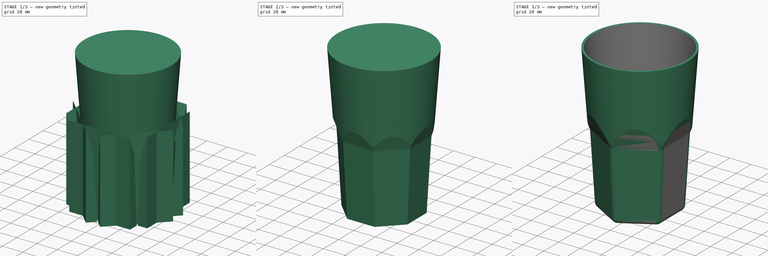
[diagram: build sequence overview — one tinted view per stage of 3, left to right]
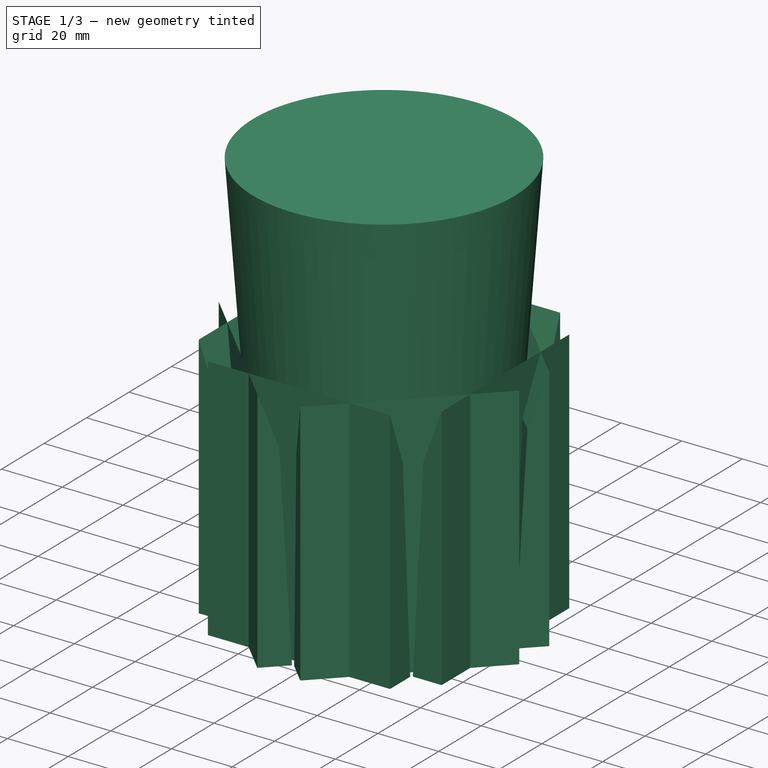
[diagram: stage 1 of 3 — iso view after this stage's code; geometry added in this stage tinted green]
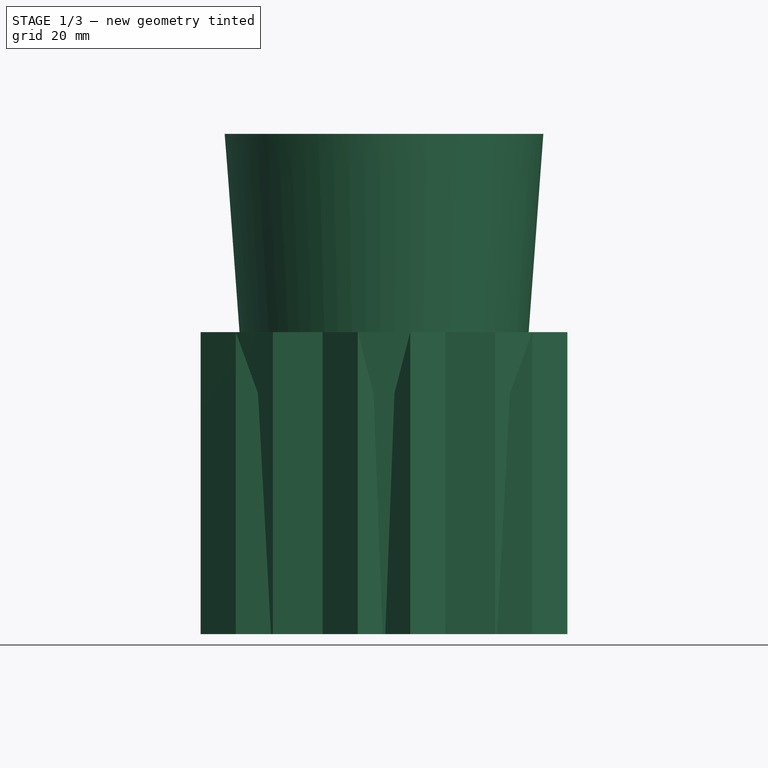
[diagram: stage 1 of 3 — front view after this stage's code; geometry added in this stage tinted green]
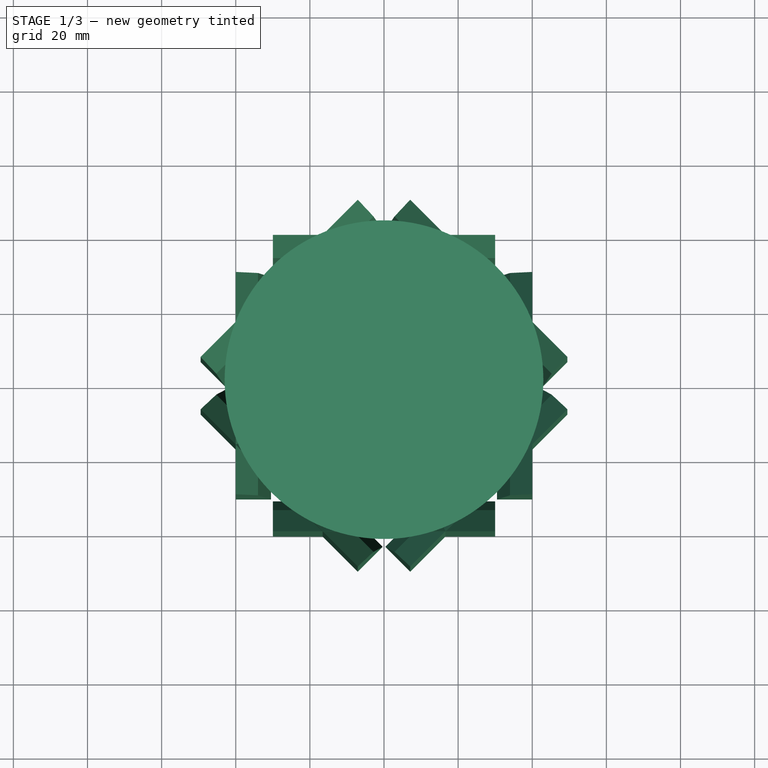
[diagram: stage 1 of 3 — top view after this stage's code; geometry added in this stage tinted green]
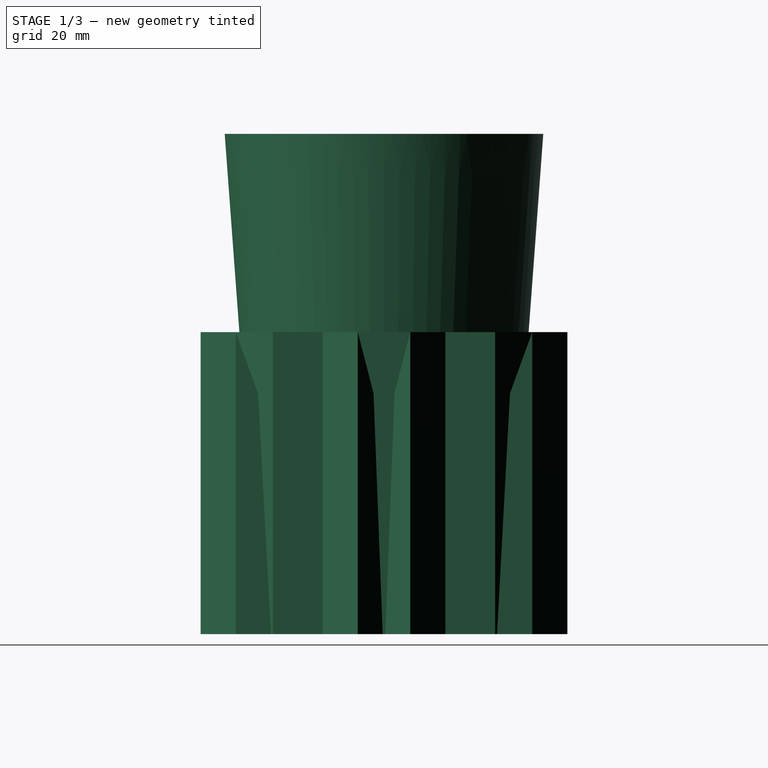
[diagram: stage 1 of 3 — right view after this stage's code; geometry added in this stage tinted green]
FCSTD DOCUMENT  (FreeCAD 0.15R4671 (Git))
Label: cup
License: CreativeCommons Attribution
LicenseURL: http://creativecommons.org/licenses/by/4.0/
objects: Part::Fillet×4, Part::Cone×1, Sketcher::SketchObject×1, Part::Extrusion×1, Part::FeaturePython×1, Part::Cut×1, Part::Thickness×1
note: 10 computed .brp shape members not serialized (recipe doc carries the construction recipe); baked Part::Feature solids carry a one-line shape summary decoded from their .brp

FEATURE [Part::Cone] Cone
  Angle = 360
  Height = 135
  Radius1 = 33
  Radius2 = 43
FEATURE [Sketcher::SketchObject] Sketch
  Placement = pos=(0,0,0) rot=(1,0,0;1.5708rad)
  sketch-geometry (4):
    g0: LineSegment StartX=30.5 StartY=0 StartZ=0 EndX=34 EndY=65 EndZ=0
    g1: LineSegment StartX=34 StartY=65 StartZ=0 EndX=40 EndY=81.4849 EndZ=0
    g2: LineSegment StartX=40 StartY=81.4849 StartZ=0 EndX=40 EndY=0 EndZ=0
    g3: LineSegment StartX=30.5 StartY=0 StartZ=0 EndX=40 EndY=0 EndZ=0
  constraints (12):
    c: PointOnObject(g0,g-1)
    c: Coincident(g2,g1)
    c: Vertical(g2)
    c: Angle(g1,g2) = 0.349066
    c: Horizontal(g3)
    c: Coincident(g2,g3)
    c: Coincident(g0,g3)
    c: Coincident(g0,g1)
    c: DistanceX(g-1,g2) = 40
    c: DistanceX(g-1,g0) = 34
    c: Distance(g-1,g0) = 30.5
    c: DistanceY(g0,g2) = -65
FEATURE [Part::Extrusion] Extrude
  Base = -> Sketch
  Dir = (0,60,0)
  Placement = pos=(0,-30,0) rot=(0,0,1;0rad)
  Solid = true
FEATURE [Part::FeaturePython] Array  # Draft array (typed FeaturePython)
  Angle = 360
  ArrayType = 1
  Axis = (0,0,1)
  Base = -> Extrude
  Center = (0,0,0)
  Fuse = true
  IntervalAxis = (0,0,0)
  IntervalX = (1,0,0)
  IntervalY = (0,1,0)
  IntervalZ = (0,0,0)
  NumberPolar = 8
  NumberX = 1
  NumberY = 1
  NumberZ = 1
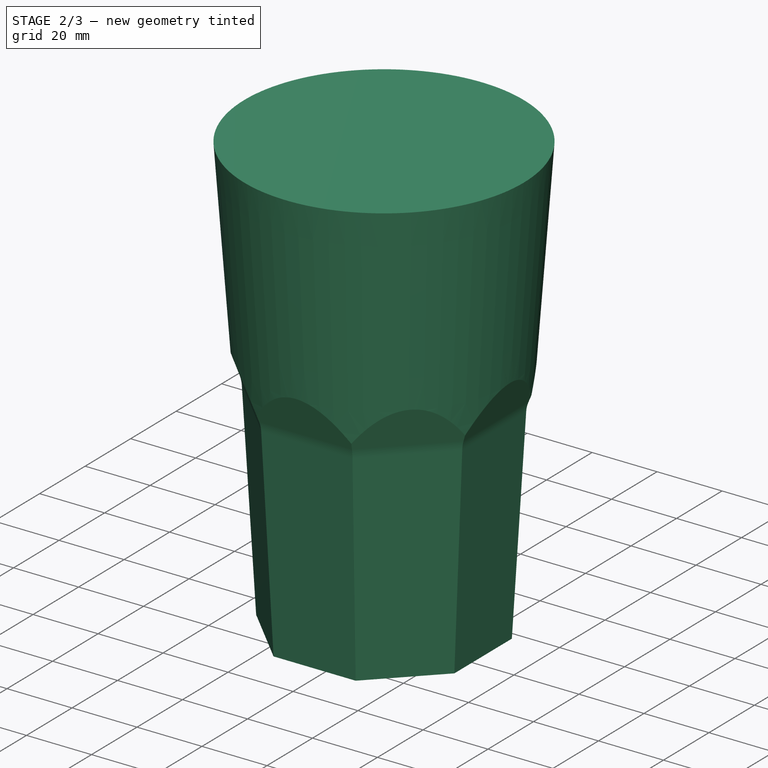
[diagram: stage 2 of 3 — iso view after this stage's code; geometry added in this stage tinted green]
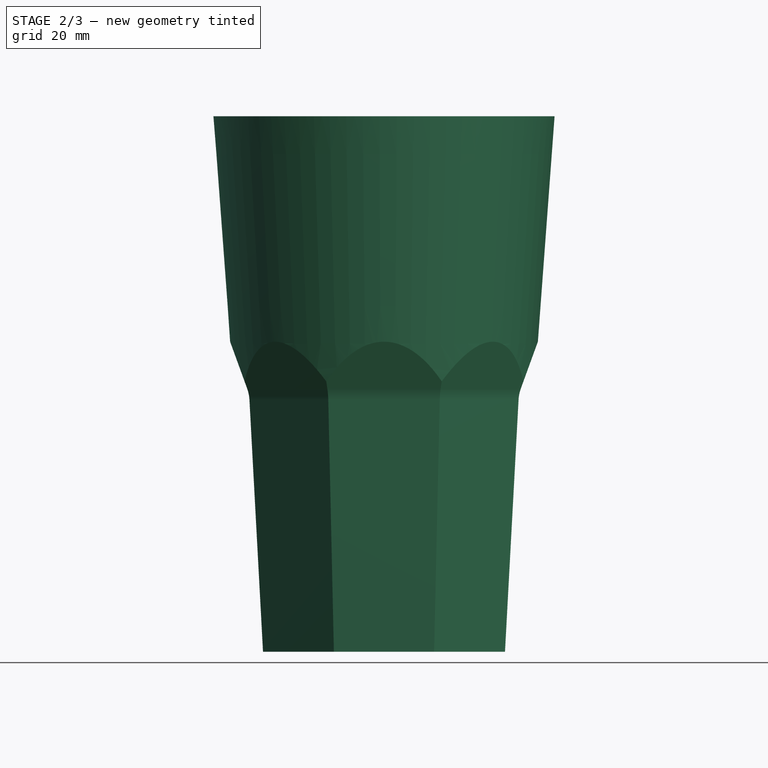
[diagram: stage 2 of 3 — front view after this stage's code; geometry added in this stage tinted green]
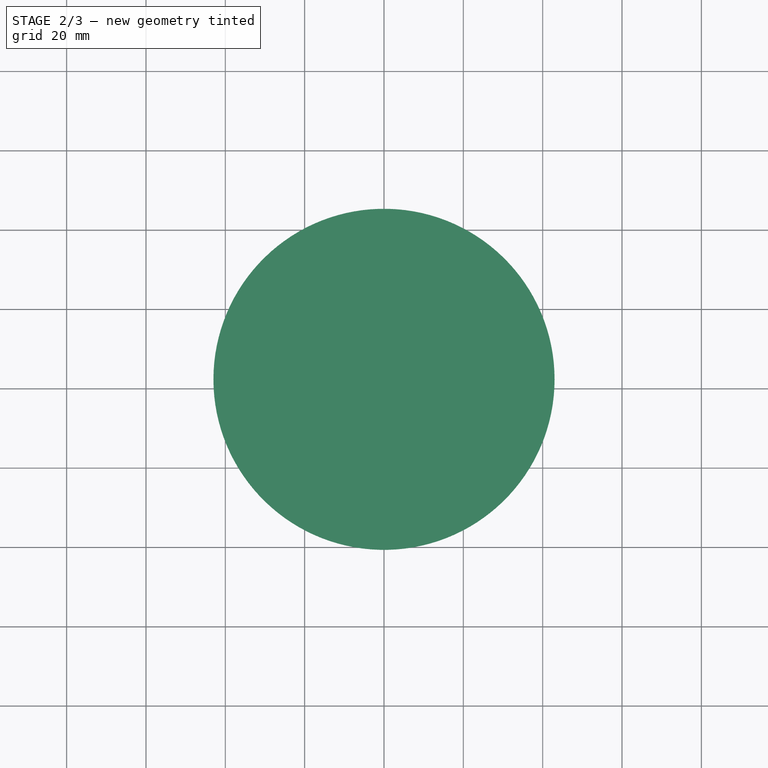
[diagram: stage 2 of 3 — top view after this stage's code; geometry added in this stage tinted green]
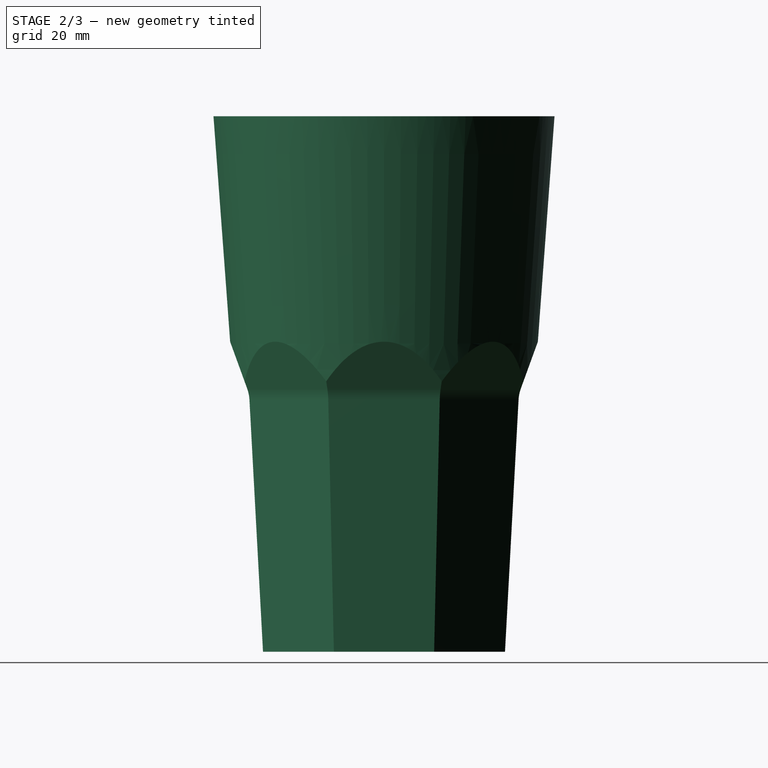
[diagram: stage 2 of 3 — right view after this stage's code; geometry added in this stage tinted green]
FEATURE [Part::Cut] Cut
  Base = -> Cone
  Tool = -> Array
FEATURE [Part::Fillet] Fillet
  Base = -> Cut
  Edges = 8 edges r=10: [Edge14,Edge15,Edge18,Edge20,Edge22,Edge24,Edge26,Edge27]
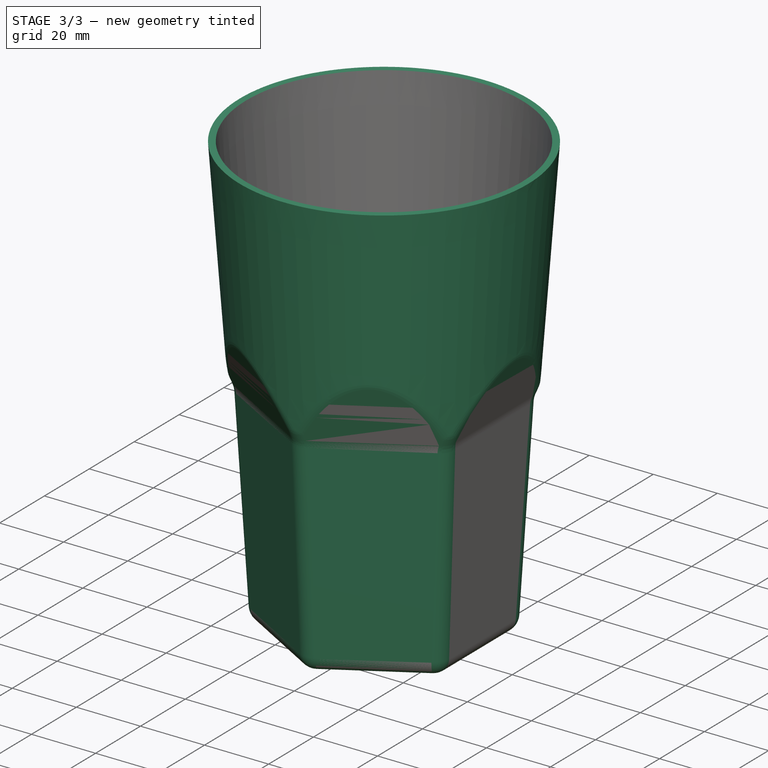
[diagram: stage 3 of 3 — iso view after this stage's code; geometry added in this stage tinted green]
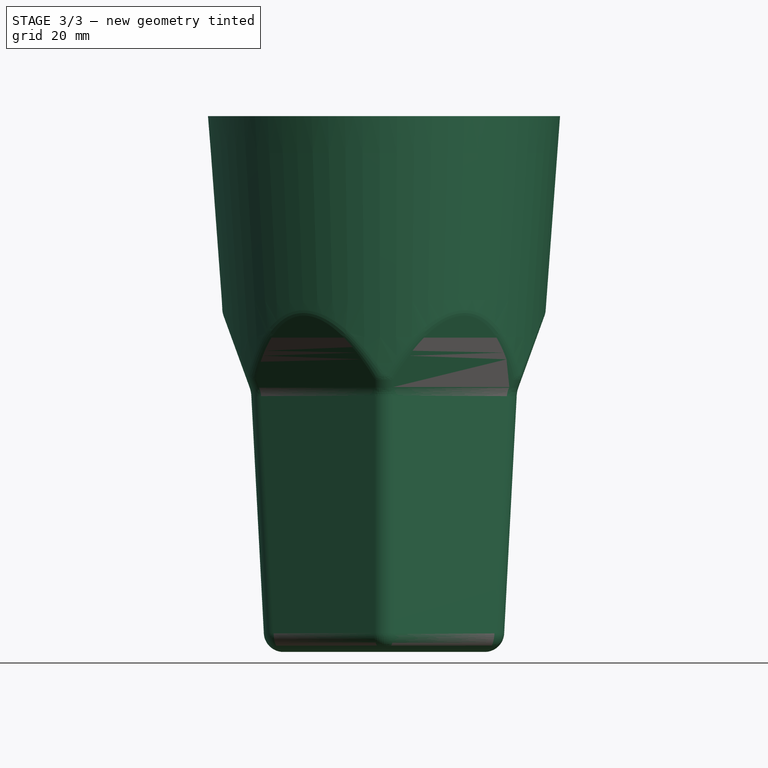
[diagram: stage 3 of 3 — front view after this stage's code; geometry added in this stage tinted green]
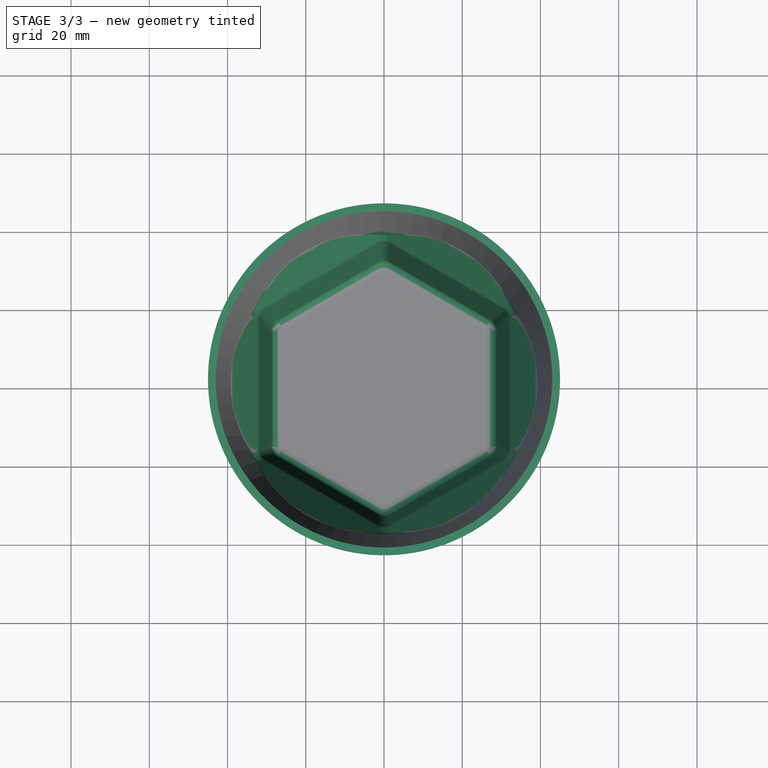
[diagram: stage 3 of 3 — top view after this stage's code; geometry added in this stage tinted green]
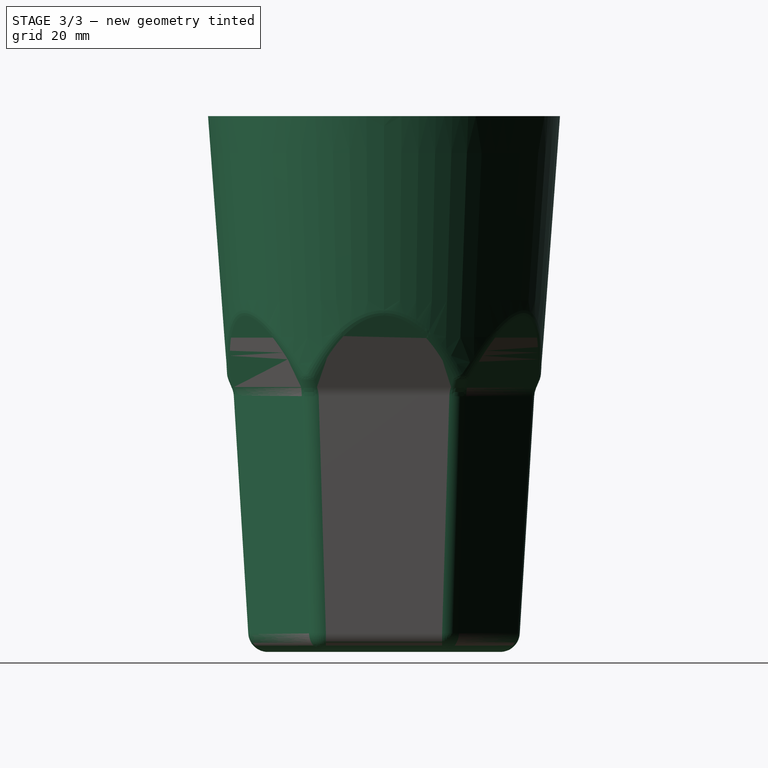
[diagram: stage 3 of 3 — right view after this stage's code; geometry added in this stage tinted green]
FEATURE [Part::Fillet] Fillet001
  Base = -> Fillet
  Edges = 33 edges r=5: [Edge1,Edge3,Edge4,Edge5,Edge7,Edge8,Edge9,Edge11,Edge13,Edge14,Edge15,Edge16,Edge17,Edge18,Edge21,Edge23,Edge24,Edge26,Edge28,Edge32,Edge33,Edge35,Edge37,Edge41,Edge45,Edge48,Edge63,Edge66,Edge68,Edge70,Edge74,Edge77,Edge80]
FEATURE [Part::Fillet] Fillet002
  Base = -> Fillet001
  Edges = 12 edges r=3: [Edge26,Edge48,Edge52,Edge56,Edge57,Edge58,Edge59,Edge60,Edge61,Edge62,Edge63,Edge64]
FEATURE [Part::Thickness] Thickness
  Faces = -> Fillet002 [Face50]
  Intersection = false
  Join = 0
  Mode = 0
  SelfIntersection = false
  Value = 2
FEATURE [Part::Fillet] Fillet003
  Base = -> Thickness
  Edges = 2 edges r=0.8: [Edge163,Edge207]
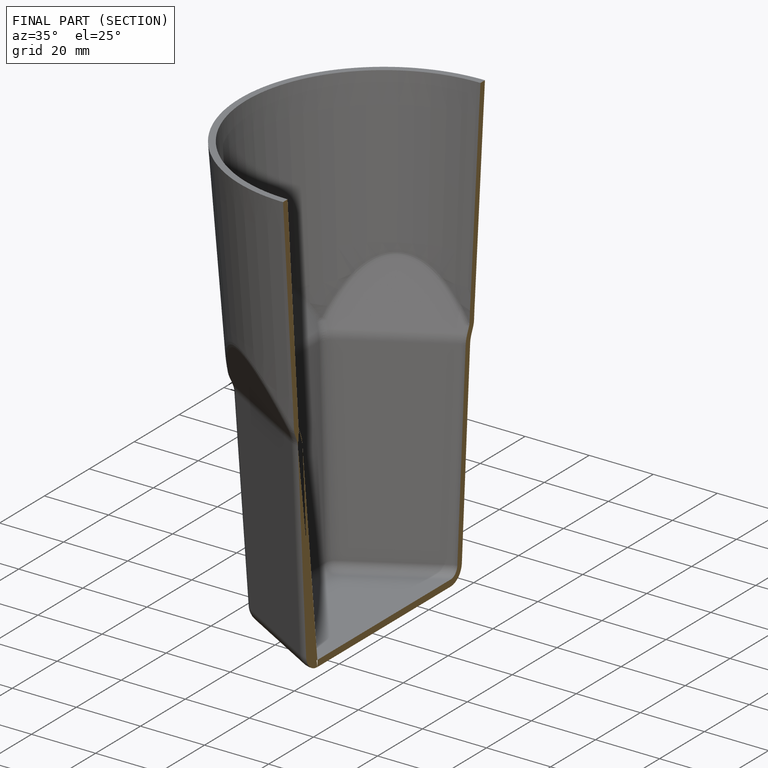
[diagram: finished part — half-section view (interior)]
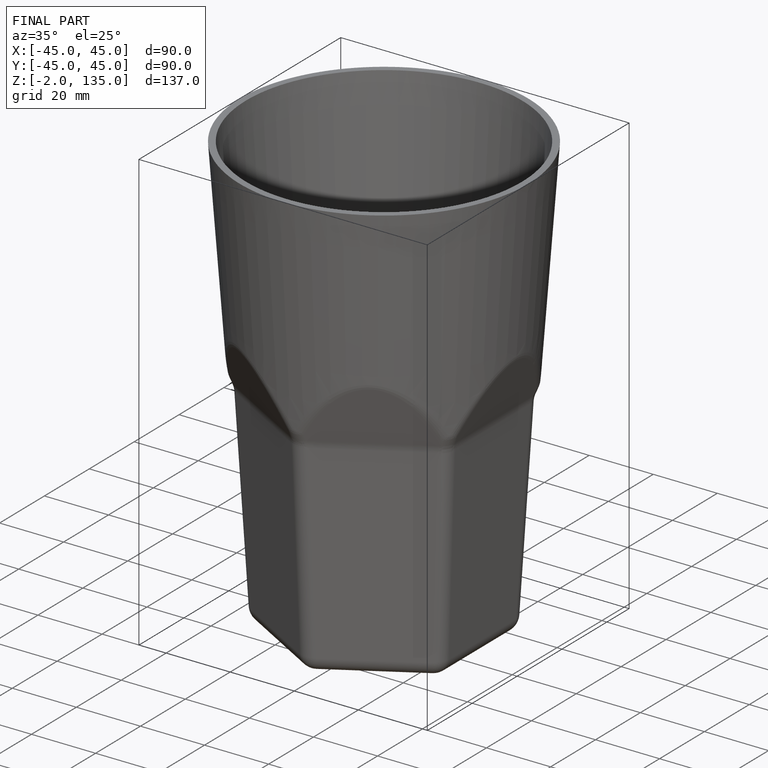
[diagram: finished part — iso view with bounding-box wireframe]
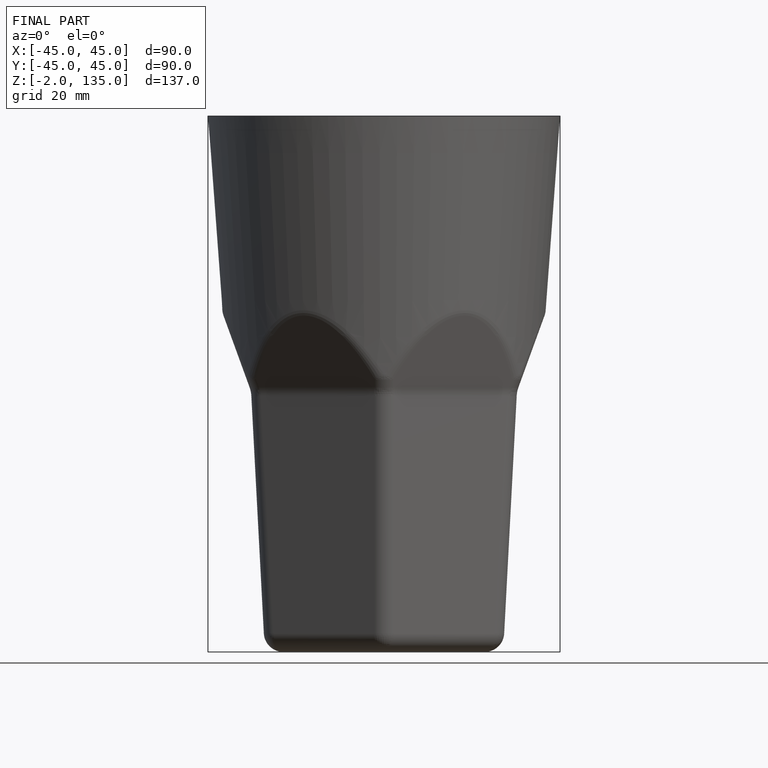
[diagram: finished part — front view with bounding-box wireframe]
